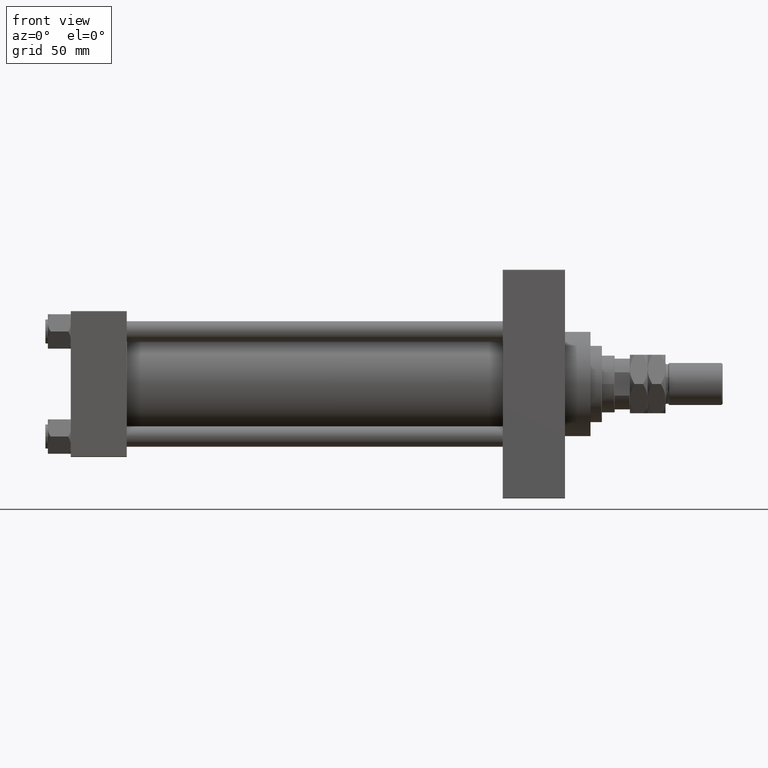
[diagram: clean part render]
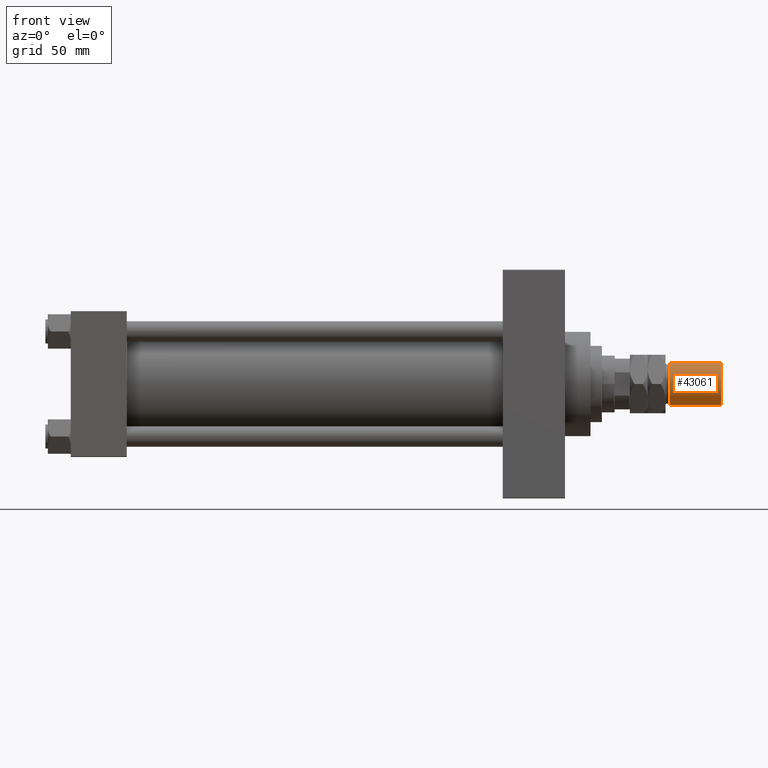
[diagram: same view with one face highlighted and labeled with its STEP entity id]
A machine part, front view. The second image highlights one B-rep face of the part: STEP entity #43061.
In plain terms, the highlighted cylindrical surface (edge-blend (fillet) strip) has radius 16.5 mm, axis along (-1, -0, 0).
Its self-contained STEP definition (entity closure, byte-faithful):
#3147 = DIRECTION ( 'NONE',  ( 1.000000000000000000, 0.000000000000000000, 0.000000000000000000 ) ) ;
#4007 = VERTEX_POINT ( 'NONE', #24552 ) ;
#8931 = CARTESIAN_POINT ( 'NONE',  ( -16.50000000000000000, 0.000000000000000000, 72.00000000000000000 ) ) ;
#9729 = CARTESIAN_POINT ( 'NONE',  ( 0.000000000000000000, 0.000000000000000000, 30.99999999999998579 ) ) ;
#11424 = EDGE_CURVE ( 'NONE', #4007, #37694, #37418, .T. ) ;
#12709 = VERTEX_POINT ( 'NONE', #13972 ) ;
#12921 = EDGE_CURVE ( 'NONE', #12709, #24644, #20815, .T. ) ;
#13972 = CARTESIAN_POINT ( 'NONE',  ( -16.50000000000000000, 0.000000000000000000, 30.99999999999998579 ) ) ;
#14784 = DIRECTION ( 'NONE',  ( -0.000000000000000000, -0.000000000000000000, -1.000000000000000000 ) ) ;
#15204 = VECTOR ( 'NONE', #49725, 1000.000000000000000 ) ;
#17712 = CARTESIAN_POINT ( 'NONE',  ( 16.50000000000000000, 2.020667218593133100E-15, 73.00000000000000000 ) ) ;
#18911 = ORIENTED_EDGE ( 'NONE', *, *, #11424, .T. ) ;
#19068 = EDGE_CURVE ( 'NONE', #37694, #12709, #42626, .T. ) ;
#20815 = CIRCLE ( 'NONE', #24180, 16.50000000000000000 ) ;
#20939 = CARTESIAN_POINT ( 'NONE',  ( 0.000000000000000000, 0.000000000000000000, 72.00000000000000000 ) ) ;
#24180 = AXIS2_PLACEMENT_3D ( 'NONE', #9729, #29506, #3147 ) ;
#24260 = ORIENTED_EDGE ( 'NONE', *, *, #12921, .T. ) ;
#24552 = CARTESIAN_POINT ( 'NONE',  ( 16.50000000000000000, 2.020667218593133100E-15, 72.00000000000000000 ) ) ;
#24644 = VERTEX_POINT ( 'NONE', #44395 ) ;
#26616 = AXIS2_PLACEMENT_3D ( 'NONE', #20939, #49037, #49296 ) ;
#27270 = CARTESIAN_POINT ( 'NONE',  ( -16.50000000000000000, 0.000000000000000000, 73.00000000000000000 ) ) ;
#29002 = CARTESIAN_POINT ( 'NONE',  ( 0.000000000000000000, 0.000000000000000000, 73.00000000000000000 ) ) ;
#29506 = DIRECTION ( 'NONE',  ( -0.000000000000000000, -0.000000000000000000, 1.000000000000000000 ) ) ;
#31693 = ORIENTED_EDGE ( 'NONE', *, *, #47879, .F. ) ;
#31894 = CYLINDRICAL_SURFACE ( 'NONE', #46717, 16.50000000000000000 ) ;
#36051 = FACE_OUTER_BOUND ( 'NONE', #40001, .T. ) ;
#37418 = CIRCLE ( 'NONE', #26616, 16.50000000000000000 ) ;
#37694 = VERTEX_POINT ( 'NONE', #8931 ) ;
#40001 = EDGE_LOOP ( 'NONE', ( #31693, #18911, #50575, #24260 ) ) ;
#40260 = VECTOR ( 'NONE', #14784, 1000.000000000000000 ) ;
#42626 = LINE ( 'NONE', #27270, #40260 ) ;
#43061 = ADVANCED_FACE ( 'NONE', ( #36051 ), #31894, .T. ) ;
#44395 = CARTESIAN_POINT ( 'NONE',  ( 16.50000000000000000, 2.020667218593133100E-15, 30.99999999999998579 ) ) ;
#44622 = DIRECTION ( 'NONE',  ( -1.000000000000000000, 0.000000000000000000, 0.000000000000000000 ) ) ;
#46717 = AXIS2_PLACEMENT_3D ( 'NONE', #29002, #48532, #44622 ) ;
#47879 = EDGE_CURVE ( 'NONE', #4007, #24644, #50486, .T. ) ;
#48532 = DIRECTION ( 'NONE',  ( -0.000000000000000000, -0.000000000000000000, -1.000000000000000000 ) ) ;
#49037 = DIRECTION ( 'NONE',  ( 0.000000000000000000, 0.000000000000000000, -1.000000000000000000 ) ) ;
#49296 = DIRECTION ( 'NONE',  ( 1.000000000000000000, 0.000000000000000000, 0.000000000000000000 ) ) ;
#49725 = DIRECTION ( 'NONE',  ( -0.000000000000000000, -0.000000000000000000, -1.000000000000000000 ) ) ;
#50486 = LINE ( 'NONE', #17712, #15204 ) ;
#50575 = ORIENTED_EDGE ( 'NONE', *, *, #19068, .T. ) ;